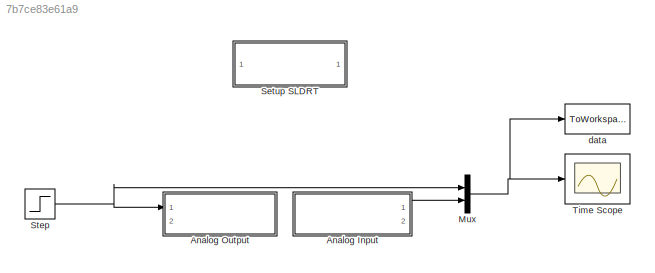
MODEL slx_7b7ce83e61a9
KIND model
CONFIG AbsTol = auto
CONFIG FixedStep = auto
CONFIG InitFcn = Ts=eval(get_param([bdroot,'/ Setup SLDRT'],'Ts'));
CONFIG MaxStep = auto
CONFIG MinStep = auto
CONFIG PostLoadFcn = try\nif isempty(which('ZHAWcbfcn'));\ncallback_fid07124=fopen('ZHAWcbfcn.m','w');\n[~]=fprintf(callback_fid07124,'%s',get_param([bdroot,'/ Setup SLDRT'],'ClipboardFcn'));\n[~]=fclose(callback_fid07124);\nsetpref('ZHAW_SLDRT_lib','cb_fcn',which('ZHAWcbfcn'))\nclear callback_fid07124\nend\ncatch\nclear callback_fid07124\nend\nTs=eval(get_param([bdroot,'/ Setup SLDRT'],'Ts'));
CONFIG RelTol = 1e-3
CONFIG SampleTimeConstraint = Unconstrained
CONFIG Solver = ode3
CONFIG SolverMode = Auto
CONFIG SolverName = ode3
CONFIG StartTime = 0.0
CONFIG StopTime = 10.0
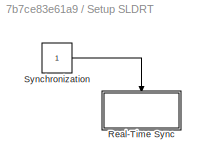
BLOCK [SubSystem]  Setup SLDRT
  AttributesFormatString = Sample Time: %<Ts>
  ClipboardFcn = function varout = ZHAWcbfcn(mode,option)\n%ZHAWcbfcn callback function for ZHAW SLDRT library.\n% Version R2016a\n\n% Otto Fluder / ZHAW / IMS / <email>\n\nif 0\n    %set_param(gcb,'LinkStatus',getpref('ZHAW_SLDRT_lib','LibraryLinkStatus','none'));\n    %set_param(gcb,'OpenFcn','open_system(gcb,''Mask'')') %\n    %open_system(gcb,'Mask');\n    %set_param(gcb,'OpenFcn','')\n    return\nend\n\nif nargin==0\n    mo...<+60342ch>
  CopyFcn = try\n    if isempty(which('ZHAWcbfcn'));\n        callback_fid07124=fopen('ZHAWcbfcn.m','w');\n        [~]=fprintf(callback_fid07124,'%s',get_param(gcb,'ClipboardFcn'));\n        [~]=fclose(callback_fid07124);\n        setpref('ZHAW_SLDRT_lib','cb_fcn',which('ZHAWcbfcn'));\n        clear callback_fid07124;\n    end\ncatch\n    clear callback_fid07124;\nend\n\nset_param(gcb,'LinkStatus',getpref('ZHAW_SLDRT_lib...<+207ch>
  DeleteFcn = try\nset_param(gcs,'InitFcn','');\nset_param(gcs,'PostLoadFcn','');\nset_param(bdroot,'SimulationMode','normal')\nend
  DestroyFcn = try\nset_param(gcs,'CloseFcn','');\nend
  InitFcn = try\n    if isempty(which('ZHAWcbfcn'));\n        callback_fid07124=fopen('ZHAWcbfcn.m','w');\n        [~]=fprintf(callback_fid07124,'%s',get_param(gcb,'ClipboardFcn'));\n        [~]=fclose(callback_fid07124);\n        setpref('ZHAW_SLDRT_lib','cb_fcn',which('ZHAWcbfcn'));\n        clear callback_fid07124;\n    end\ncatch\n    clear callback_fid07124;\nend
  OpenFcn = try\n    if isempty(which('ZHAWcbfcn'));\n        callback_fid07124=fopen('ZHAWcbfcn.m','w');\n        [~]=fprintf(callback_fid07124,'%s',get_param(gcb,'ClipboardFcn'));\n        [~]=fclose(callback_fid07124);\n        setpref('ZHAW_SLDRT_lib','cb_fcn',which('ZHAWcbfcn'));\n        clear callback_fid07124;\n    end\ncatch\n    clear callback_fid07124;\nend\n\nTs=eval(get_param([bdroot,'/ Setup SLDRT'],'Ts'));...<+144ch>
  Ports = []
  RequestExecContextInheritance = off
  Variant = off
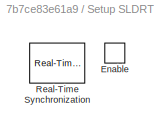
BLOCK [SubSystem]  Setup SLDRT/Real-Time Sync
  Ports = [0, 0, 1]
  RequestExecContextInheritance = off
  Variant = off
BLOCK [EnablePort]  Setup SLDRT/Real-Time Sync/Enable
  Ports = []
BLOCK [Reference]  Setup SLDRT/Real-Time Sync/Real-Time Synchronization  REF=sldrtlib/Real-Time
Synchronization
  Ports = []
  SourceBlock = sldrtlib/Real-Time\nSynchronization
  SourceType = Simulink Desktop Real-Time Synchronization
BLOCK [Constant]  Setup SLDRT/Synchronization
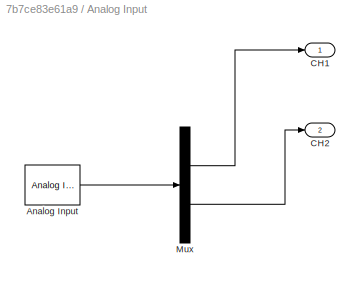
BLOCK [SubSystem] Analog Input
  AttributesFormatString = %<couple>
  CopyFcn = try\nZHAWcbfcn('CopyIOblock') \nend\nset_param(gcb,'OpenFcn','try ZHAWcbfcn(''openMask''); end')
  OpenFcn = try ZHAWcbfcn('openMask'); end
  Ports = [0, 2]
  RequestExecContextInheritance = off
  Variant = off
BLOCK [Reference] Analog Input/Analog Input  REF=sldrtlib/Analog Input
  AttributesFormatString = National Instruments\nPCIe-6321 [auto]
  Ports = [0, 1]
  SourceBlock = sldrtlib/Analog Input
  SourceType = Simulink Desktop Real-Time Analog Input
BLOCK [Outport] Analog Input/CH1
  IconDisplay = Port number
BLOCK [Outport] Analog Input/CH2
  IconDisplay = Port number
  Port = 2
BLOCK [Demux] Analog Input/Mux
  DisplayOption = bar
  Outputs = 2
  Ports = [1, 2]
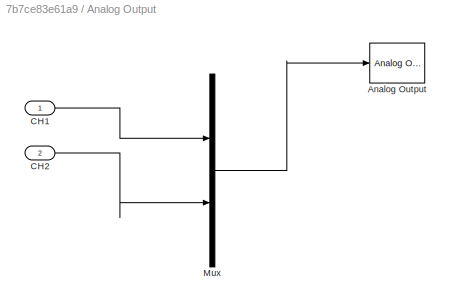
BLOCK [SubSystem] Analog Output
  CopyFcn = try\nZHAWcbfcn('CopyIOblock') \nend\nset_param(gcb,'OpenFcn','try ZHAWcbfcn(''openMask''); end')
  OpenFcn = try ZHAWcbfcn('openMask'); end
  Ports = [2]
  RequestExecContextInheritance = off
  Variant = off
BLOCK [Reference] Analog Output/Analog Output  REF=sldrtlib/Analog Output
  AttributesFormatString = National Instruments\nPCIe-6321 [auto]
  Ports = [1]
  SourceBlock = sldrtlib/Analog Output
  SourceType = Simulink Desktop Real-Time Analog Output
BLOCK [Inport] Analog Output/CH1
  IconDisplay = Port number
BLOCK [Inport] Analog Output/CH2
  IconDisplay = Port number
  Port = 2
BLOCK [Mux] Analog Output/Mux
  DisplayOption = bar
  Inputs = 2
  Ports = [2, 1]
BLOCK [Mux] Mux
  DisplayOption = bar
  Inputs = 2
  Ports = [2, 1]
BLOCK [Step] Step
  After = 4
  SampleTime = 0
BLOCK [Scope] Time Scope
  CopyFcn = try ZHAWcbfcn('copyScope'); end
  NameChangeFcn = try ZHAWcbfcn('namechangeScope'); end
  Ports = [1]
  ScopeSpecificationString = Simulink.scopes.TimeScopeBlockCfg('CurrentConfiguration', extmgr.ConfigurationSet(extmgr.Configuration('Core','General UI',true,'FigureColor',[0.941176470588235 0.941176470588235 0.941176470588235]),extmgr.Configuration('Core','Source UI',true),extmgr.Configuration('Sources','WiredSimulink',true,'DataLoggingSaveFormat','StructureWithTime','DataLoggingDecimation','1','DataLoggingDecimateData',true)...<+1707ch>
BLOCK [ToWorkspace] data
  CopyFcn = try ZHAWcbfcn('copyToWS'); end
  MaxDataPoints = inf
  NameChangeFcn = try ZHAWcbfcn('namechangeToWS'); end
  Ports = [1]
  SampleTime = Ts
  SaveFormat = Structure With Time
  VariableName = data_q_4v
LINE  Setup SLDRT/Synchronization:1 ->  Setup SLDRT/Real-Time Sync:enable
LINE Analog Input/Analog Input:1 -> Analog Input/Mux:1
LINE Analog Input/Mux:1 -> Analog Input/CH1:1
LINE Analog Input/Mux:2 -> Analog Input/CH2:1
LINE Analog Input:1 -> Mux:2
LINE Analog Output/CH1:1 -> Analog Output/Mux:1
LINE Analog Output/CH2:1 -> Analog Output/Mux:2
LINE Analog Output/Mux:1 -> Analog Output/Analog Output:1
NET Mux:1 -> Time Scope:1, data:1
NET Step:1 -> Analog Output:1, Mux:1
note: NET lines group one-source signal fan-out (src -> all destinations, sorted); 1:1 wires keep LINE
